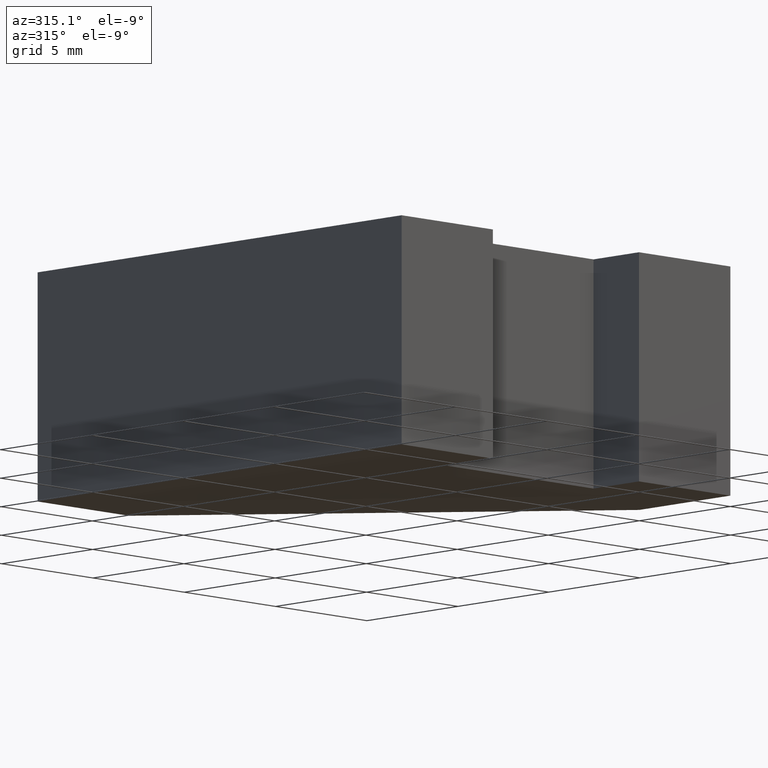
[diagram: clean part render]
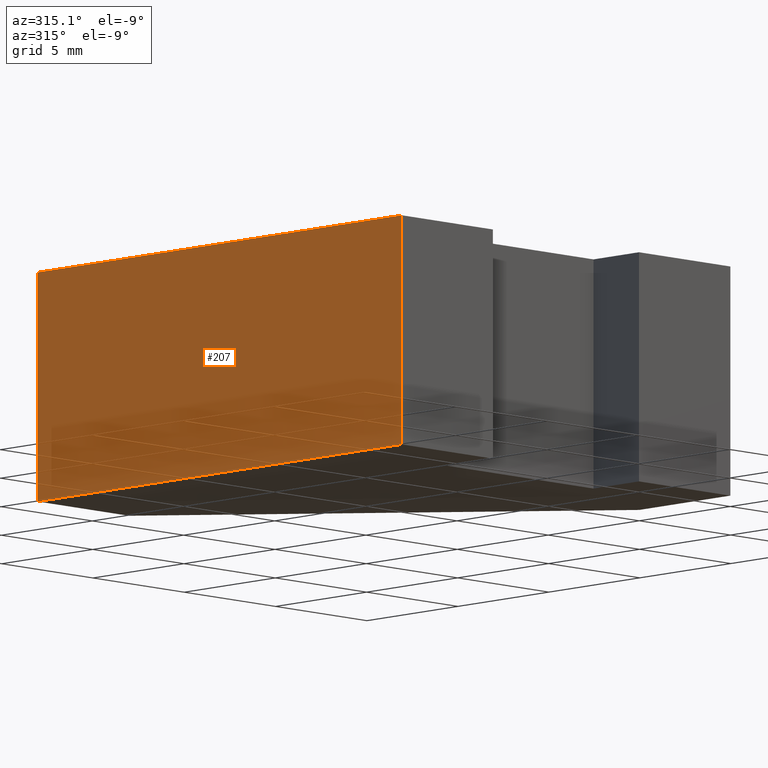
[diagram: same view with one face highlighted and labeled with its STEP entity id]
A machine part, auxiliary view. The second image highlights one B-rep face of the part: STEP entity #207.
In plain terms, the highlighted planar face has unit normal (-1, -0, 0).
Its self-contained STEP definition (entity closure, byte-faithful):
#21=FACE_OUTER_BOUND('',#32,.T.);
#32=EDGE_LOOP('',(#162,#163,#164,#165));
#44=LINE('',#314,#71);
#55=LINE('',#335,#82);
#56=LINE('',#338,#83);
#57=LINE('',#339,#84);
#71=VECTOR('',#257,10.);
#82=VECTOR('',#276,10.);
#83=VECTOR('',#279,10.);
#84=VECTOR('',#280,10.);
#98=VERTEX_POINT('',#311);
#99=VERTEX_POINT('',#313);
#105=VERTEX_POINT('',#333);
#106=VERTEX_POINT('',#337);
#116=EDGE_CURVE('',#99,#98,#44,.T.);
#127=EDGE_CURVE('',#105,#98,#55,.T.);
#128=EDGE_CURVE('',#105,#106,#56,.T.);
#129=EDGE_CURVE('',#106,#99,#57,.T.);
#162=ORIENTED_EDGE('',*,*,#128,.T.);
#163=ORIENTED_EDGE('',*,*,#129,.T.);
#164=ORIENTED_EDGE('',*,*,#116,.T.);
#165=ORIENTED_EDGE('',*,*,#127,.F.);
#196=PLANE('',#241);
#207=ADVANCED_FACE('',(#21),#196,.T.);
#241=AXIS2_PLACEMENT_3D('',#336,#277,#278);
#257=DIRECTION('',(1.11022302462516E-16,-1.,0.));
#276=DIRECTION('',(0.,0.,-1.));
#277=DIRECTION('center_axis',(-1.,-1.11022302462516E-16,0.));
#278=DIRECTION('ref_axis',(0.,0.,1.));
#279=DIRECTION('',(-1.11022302462516E-16,1.,0.));
#280=DIRECTION('',(0.,0.,-1.));
#311=CARTESIAN_POINT('',(-18.,0.,-4.5));
#313=CARTESIAN_POINT('',(-18.,20.,-4.5));
#314=CARTESIAN_POINT('',(-18.,0.,-4.5));
#333=CARTESIAN_POINT('',(-18.,0.,4.5));
#335=CARTESIAN_POINT('',(-18.,0.,0.));
#336=CARTESIAN_POINT('Origin',(-18.,0.,0.));
#337=CARTESIAN_POINT('',(-18.,20.,4.5));
#338=CARTESIAN_POINT('',(-18.,0.,4.5));
#339=CARTESIAN_POINT('',(-18.,20.,0.));